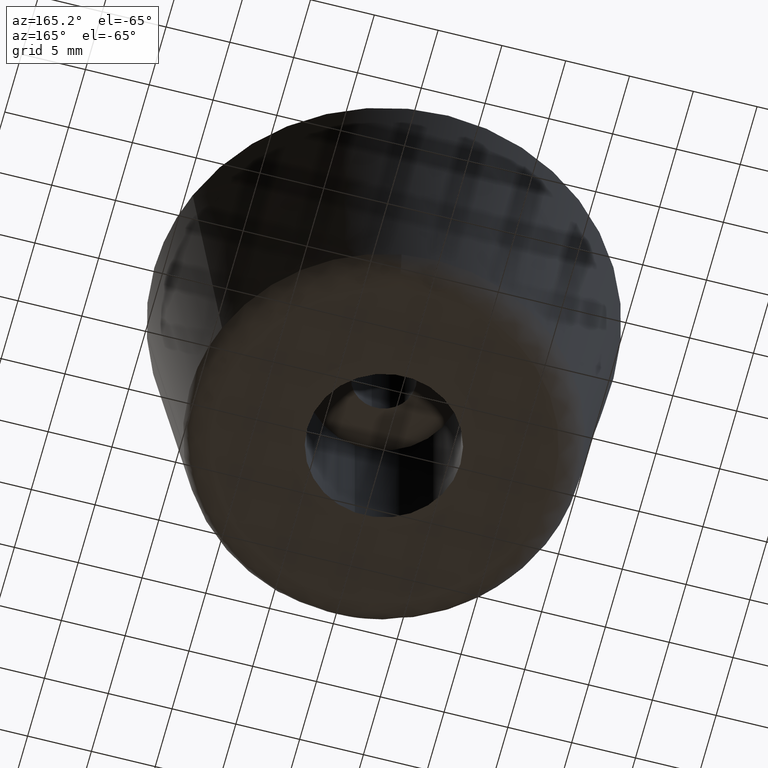
[diagram: clean part render]
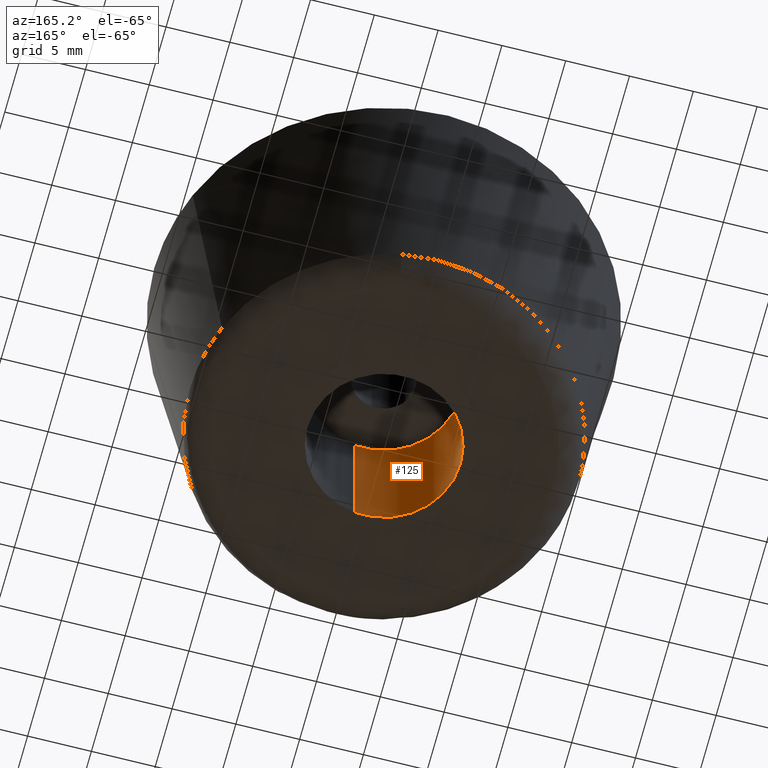
[diagram: same view with one face highlighted and labeled with its STEP entity id]
A machine part, auxiliary view. The second image highlights one B-rep face of the part: STEP entity #125.
In plain terms, the highlighted cylindrical surface (partial cylindrical patch) has radius 6 mm, axis along (-0, -0, 1).
Its self-contained STEP definition (entity closure, byte-faithful):
#125=ADVANCED_FACE('',(#269),#268,.F.);
#268=CYLINDRICAL_SURFACE('',#454,6.00000000000E+000);
#269=FACE_OUTER_BOUND('',#455,.T.);
#451=CARTESIAN_POINT('',(-1.52005703014E-014,-3.59556266626E-016,1.23000000000E+001));
#452=DIRECTION('',(-2.21321743386E-015,-1.14002621638E-016,1.00000000000E+000));
#453=DIRECTION('',(1.18034234657E-001,-9.93009526364E-001,1.48029736617E-016));
#454=AXIS2_PLACEMENT_3D('',#451,#452,#453);
#455=EDGE_LOOP('',(#575,#576,#577,#578,#579,#580));
#575=ORIENTED_EDGE('',*,*,#657,.F.);
#576=ORIENTED_EDGE('',*,*,#659,.F.);
#577=ORIENTED_EDGE('',*,*,#670,.F.);
#578=ORIENTED_EDGE('',*,*,#645,.T.);
#579=ORIENTED_EDGE('',*,*,#647,.T.);
#580=ORIENTED_EDGE('',*,*,#671,.T.);
#645=EDGE_CURVE('',#863,#864,#865,.T.);
#647=EDGE_CURVE('',#864,#871,#878,.T.);
#657=EDGE_CURVE('',#947,#948,#949,.T.);
#659=EDGE_CURVE('',#955,#947,#962,.T.);
#670=EDGE_CURVE('',#863,#955,#1036,.T.);
#671=EDGE_CURVE('',#871,#948,#1042,.T.);
#863=VERTEX_POINT('',#1207);
#864=VERTEX_POINT('',#1208);
#865=CIRCLE('',#1212,6.00000000000E+000);
#871=VERTEX_POINT('',#1213);
#878=CIRCLE('',#1221,6.00000000000E+000);
#947=VERTEX_POINT('',#1267);
#948=VERTEX_POINT('',#1268);
#949=CIRCLE('',#1272,6.00000000002E+000);
#955=VERTEX_POINT('',#1273);
#962=CIRCLE('',#1281,6.00000000002E+000);
#1036=(BOUNDED_CURVE() B_SPLINE_CURVE(1,(#1330,#1331),.UNSPECIFIED.,.F.,.F.) B_SPLINE_CURVE_WITH_KNOTS((2,2),(8.33333343261E-002,9.16666667006E-001),.UNSPECIFIED.) CURVE() GEOMETRIC_REPRESENTATION_ITEM() RATIONAL_B_SPLINE_CURVE((1.00000000000E+000,1.00000000000E+000)) REPRESENTATION_ITEM('') );
#1042=(BOUNDED_CURVE() B_SPLINE_CURVE(1,(#1332,#1333),.UNSPECIFIED.,.F.,.F.) B_SPLINE_CURVE_WITH_KNOTS((2,2),(8.33333333333E-002,9.16666666667E-001),.UNSPECIFIED.) CURVE() GEOMETRIC_REPRESENTATION_ITEM() RATIONAL_B_SPLINE_CURVE((7.50000000000E-001,7.50000000000E-001)) REPRESENTATION_ITEM('') );
#1207=CARTESIAN_POINT('',(7.08203229114E-001,-5.95805741717E+000,9.65202983685E-016));
#1208=CARTESIAN_POINT('',(-6.00000000000E+000,-3.55271367880E-015,8.78894315863E-015));
#1209=CARTESIAN_POINT('',(8.88178419700E-016,4.44089209850E-016,7.23951401543E-016));
#1210=DIRECTION('',(-1.34416529285E-015,-2.00265573064E-016,-1.00000000000E+000));
#1211=DIRECTION('',(-1.00000000000E+000,-2.77555756156E-016,1.34416529285E-015));
#1212=AXIS2_PLACEMENT_3D('',#1209,#1210,#1211);
#1213=CARTESIAN_POINT('',(-7.09235167212E-001,5.95793466543E+000,4.84111497723E-016));
#1218=CARTESIAN_POINT('',(8.88178419700E-016,4.44089209850E-016,7.23951401543E-016));
#1219=DIRECTION('',(-1.34416529285E-015,-2.00265573064E-016,-1.00000000000E+000));
#1220=DIRECTION('',(-1.00000000000E+000,-2.77555756156E-016,1.34416529285E-015));
#1221=AXIS2_PLACEMENT_3D('',#1218,#1219,#1220);
#1267=CARTESIAN_POINT('',(-6.00000000003E+000,-7.34763899128E-016,1.20000000000E+001));
#1268=CARTESIAN_POINT('',(-7.09235167215E-001,5.95793466547E+000,1.20000000000E+001));
#1269=CARTESIAN_POINT('',(-1.66409108715E-011,1.56541446472E-011,1.20000000000E+001));
#1270=DIRECTION('',(-1.48029736616E-015,5.23364152895E-016,-1.00000000000E+000));
#1271=DIRECTION('',(-1.00000000000E+000,-2.60902410788E-012,1.48029736616E-015));
#1272=AXIS2_PLACEMENT_3D('',#1269,#1270,#1271);
#1273=CARTESIAN_POINT('',(7.08203229113E-001,-5.95805741717E+000,1.20000000000E+001));
#1278=CARTESIAN_POINT('',(-1.66409108715E-011,1.56541446472E-011,1.20000000000E+001));
#1279=DIRECTION('',(-1.48029736616E-015,5.23364152895E-016,-1.00000000000E+000));
#1280=DIRECTION('',(-1.00000000000E+000,-2.60902410788E-012,1.48029736616E-015));
#1281=AXIS2_PLACEMENT_3D('',#1278,#1279,#1280);
#1330=CARTESIAN_POINT('',(7.08205407941E-001,-5.95805715818E+000,1.42954732496E-008));
#1331=CARTESIAN_POINT('',(7.08205407941E-001,-5.95805715818E+000,1.20000000049E+001));
#1332=CARTESIAN_POINT('',(-7.08205407941E-001,5.95805715818E+000,6.51330841113E-015));
#1333=CARTESIAN_POINT('',(-7.08205407941E-001,5.95805715818E+000,1.20000000000E+001));